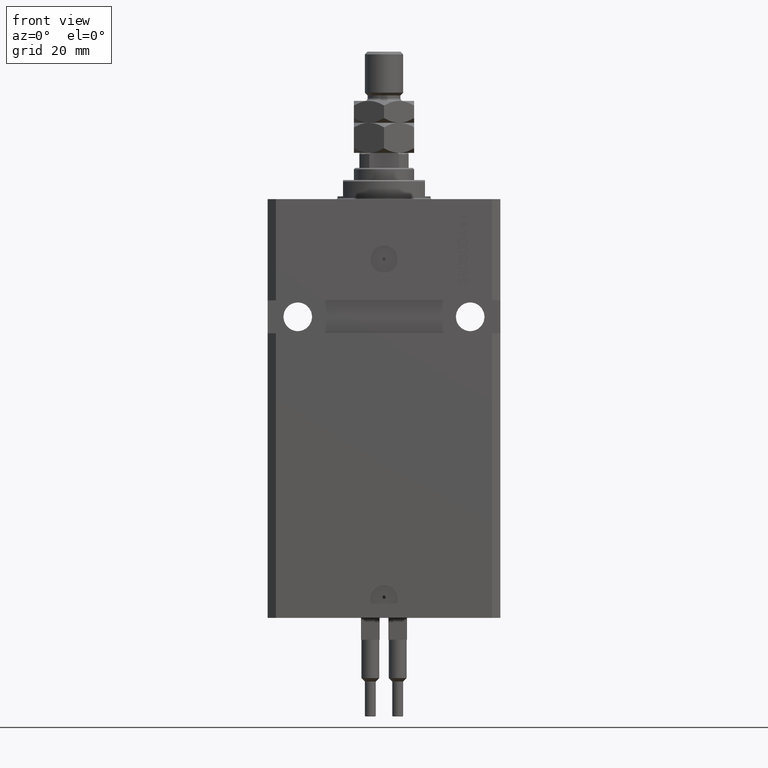
[diagram: clean part render]
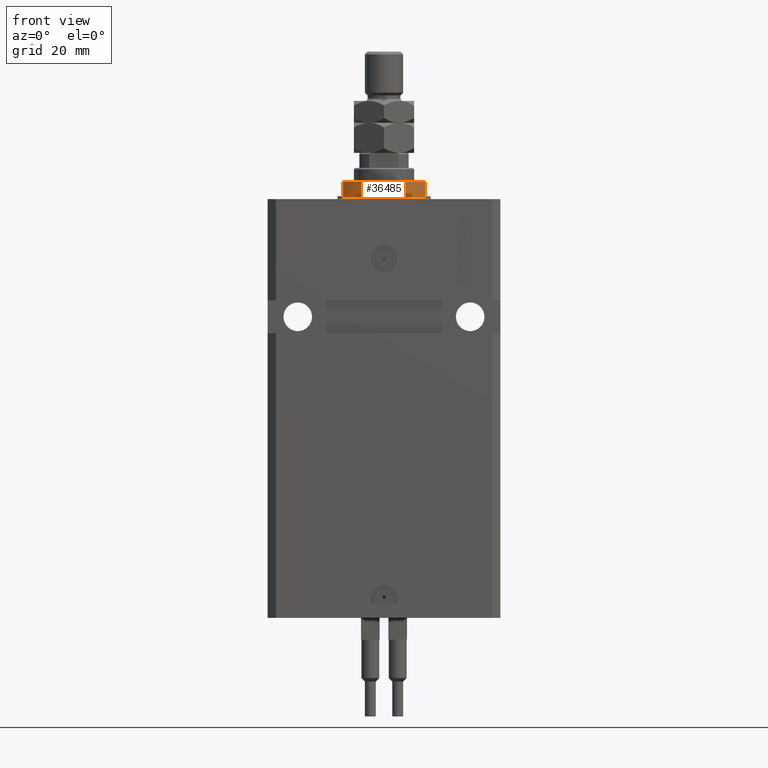
[diagram: same view with one face highlighted and labeled with its STEP entity id]
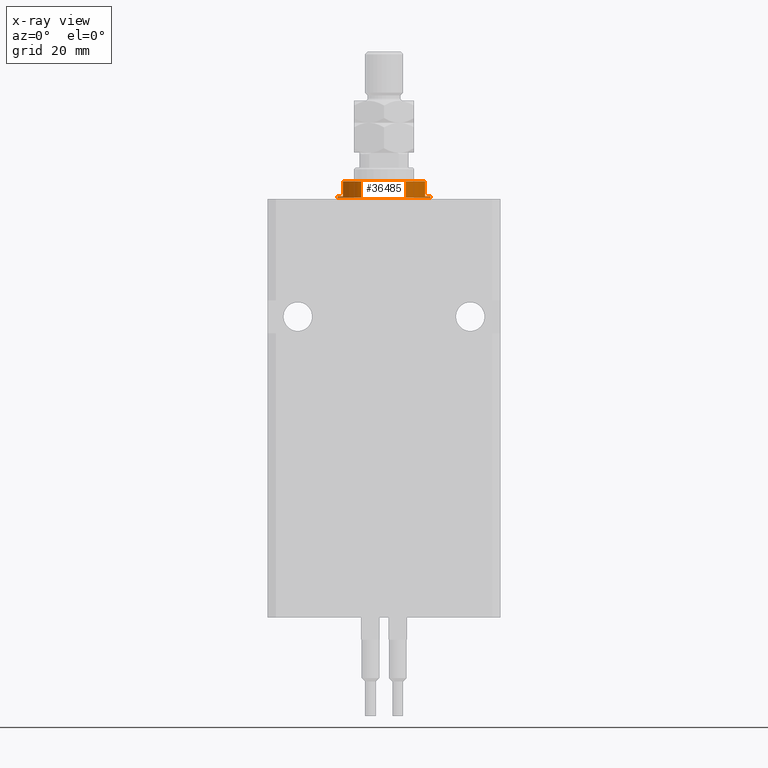
[diagram: x-ray of the same camera — body ghosted, the highlighted face saturated]
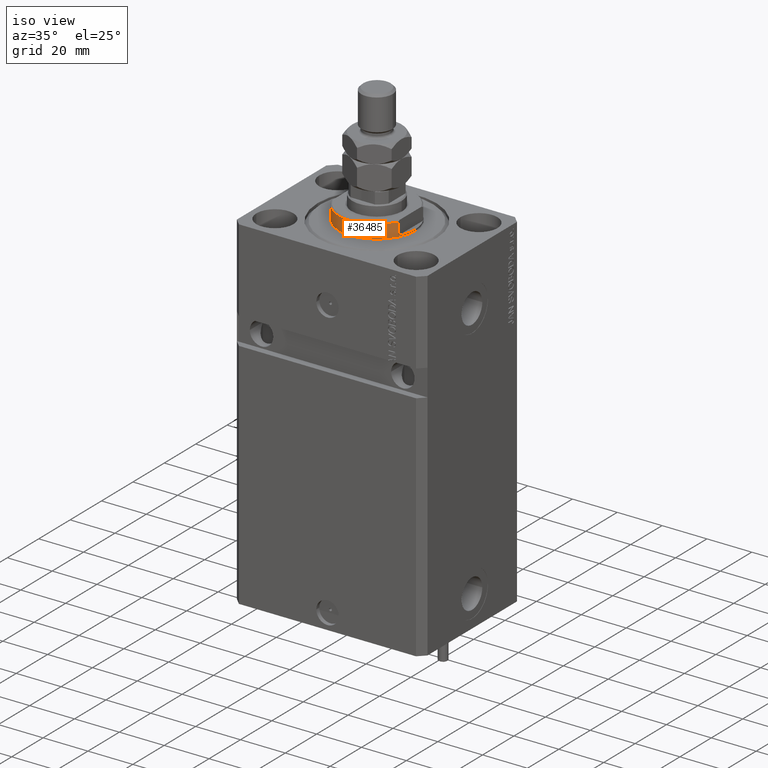
[diagram: same view with one face highlighted and labeled with its STEP entity id]
A machine part, front view. The second image highlights one B-rep face of the part: STEP entity #36485.
The next image is the same camera in x-ray: the body ghosted, the highlighted face saturated — about 0% of this face is hidden behind the body in this view.
A second angle (iso view) of the same face is appended — the face is thin or edge-on in the first view.
In plain terms, the highlighted cylindrical surface (partial cylindrical patch) has radius 17 mm, axis along (0, 0, -1).
Its self-contained STEP definition (entity closure, byte-faithful):
#93 = DIRECTION ( 'NONE',  ( -0.000000000000000000, -0.000000000000000000, 1.000000000000000000 ) ) ;
#123 = VERTEX_POINT ( 'NONE', #44448 ) ;
#2164 = LINE ( 'NONE', #49150, #21766 ) ;
#2513 = CIRCLE ( 'NONE', #44928, 17.00000000000000000 ) ;
#5825 = FACE_OUTER_BOUND ( 'NONE', #38475, .T. ) ;
#5832 = DIRECTION ( 'NONE',  ( -1.000000000000000000, 0.000000000000000000, 0.000000000000000000 ) ) ;
#8027 = ORIENTED_EDGE ( 'NONE', *, *, #12609, .T. ) ;
#8747 = CARTESIAN_POINT ( 'NONE',  ( 14.99999999999999645, -8.000000000000003553, -1.000000000000000000 ) ) ;
#9197 = CARTESIAN_POINT ( 'NONE',  ( 0.000000000000000000, 0.000000000000000000, -1.000000000000000000 ) ) ;
#9583 = VECTOR ( 'NONE', #16951, 1000.000000000000000 ) ;
#9759 = VERTEX_POINT ( 'NONE', #37203 ) ;
#9832 = VERTEX_POINT ( 'NONE', #8747 ) ;
#10401 = VERTEX_POINT ( 'NONE', #14775 ) ;
#12609 = EDGE_CURVE ( 'NONE', #36352, #123, #20786, .T. ) ;
#12881 = CARTESIAN_POINT ( 'NONE',  ( 0.000000000000000000, 0.000000000000000000, -6.500000000000000000 ) ) ;
#13054 = VERTEX_POINT ( 'NONE', #39513 ) ;
#13129 = CARTESIAN_POINT ( 'NONE',  ( -15.00000000000000000, -8.000000000000001776, -7.000000000000000000 ) ) ;
#14572 = CARTESIAN_POINT ( 'NONE',  ( -17.00000000000000000, 2.081899558550500280E-15, -7.000000000000000000 ) ) ;
#14775 = CARTESIAN_POINT ( 'NONE',  ( 17.00000000000000000, 0.000000000000000000, -1.000000000000000000 ) ) ;
#16951 = DIRECTION ( 'NONE',  ( 0.000000000000000000, 0.000000000000000000, -1.000000000000000000 ) ) ;
#17491 = DIRECTION ( 'NONE',  ( 0.000000000000000000, 0.000000000000000000, -1.000000000000000000 ) ) ;
#18057 = EDGE_CURVE ( 'NONE', #10401, #9832, #46679, .T. ) ;
#18831 = VECTOR ( 'NONE', #22480, 1000.000000000000000 ) ;
#19658 = LINE ( 'NONE', #14572, #18831 ) ;
#19944 = EDGE_CURVE ( 'NONE', #13054, #9759, #19658, .T. ) ;
#20786 = LINE ( 'NONE', #13129, #9583 ) ;
#21212 = DIRECTION ( 'NONE',  ( 0.000000000000000000, 0.000000000000000000, -1.000000000000000000 ) ) ;
#21423 = CYLINDRICAL_SURFACE ( 'NONE', #24255, 17.00000000000000000 ) ;
#21597 = ORIENTED_EDGE ( 'NONE', *, *, #19944, .F. ) ;
#21766 = VECTOR ( 'NONE', #17491, 1000.000000000000000 ) ;
#22480 = DIRECTION ( 'NONE',  ( -0.000000000000000000, -0.000000000000000000, 1.000000000000000000 ) ) ;
#22658 = ORIENTED_EDGE ( 'NONE', *, *, #49294, .T. ) ;
#23053 = ORIENTED_EDGE ( 'NONE', *, *, #27279, .T. ) ;
#23564 = ORIENTED_EDGE ( 'NONE', *, *, #18057, .F. ) ;
#24255 = AXIS2_PLACEMENT_3D ( 'NONE', #48258, #25755, #36996 ) ;
#25755 = DIRECTION ( 'NONE',  ( -0.000000000000000000, -0.000000000000000000, 1.000000000000000000 ) ) ;
#26519 = CARTESIAN_POINT ( 'NONE',  ( 17.00000000000000000, 0.000000000000000000, -0.4999999999999995559 ) ) ;
#26563 = ORIENTED_EDGE ( 'NONE', *, *, #48665, .T. ) ;
#27279 = EDGE_CURVE ( 'NONE', #123, #46348, #42643, .T. ) ;
#28531 = AXIS2_PLACEMENT_3D ( 'NONE', #9197, #21212, #45201 ) ;
#29495 = VECTOR ( 'NONE', #93, 1000.000000000000000 ) ;
#29527 = CIRCLE ( 'NONE', #48297, 17.00000000000000000 ) ;
#30993 = LINE ( 'NONE', #38921, #29495 ) ;
#32956 = DIRECTION ( 'NONE',  ( -0.000000000000000000, -0.000000000000000000, -1.000000000000000000 ) ) ;
#36245 = CARTESIAN_POINT ( 'NONE',  ( -14.99999999999999645, -8.000000000000003553, -1.000000000000000000 ) ) ;
#36352 = VERTEX_POINT ( 'NONE', #36245 ) ;
#36485 = ADVANCED_FACE ( 'NONE', ( #5825 ), #21423, .T. ) ;
#36586 = ORIENTED_EDGE ( 'NONE', *, *, #46369, .F. ) ;
#36613 = VERTEX_POINT ( 'NONE', #26519 ) ;
#36996 = DIRECTION ( 'NONE',  ( 1.000000000000000000, 0.000000000000000000, 0.000000000000000000 ) ) ;
#37203 = CARTESIAN_POINT ( 'NONE',  ( -17.00000000000000000, 2.081899558550500280E-15, -0.4999999999999995559 ) ) ;
#38475 = EDGE_LOOP ( 'NONE', ( #21597, #36586, #8027, #23053, #38663, #23564, #26563, #22658 ) ) ;
#38663 = ORIENTED_EDGE ( 'NONE', *, *, #39609, .F. ) ;
#38921 = CARTESIAN_POINT ( 'NONE',  ( 17.00000000000000000, 0.000000000000000000, -7.000000000000000000 ) ) ;
#39513 = CARTESIAN_POINT ( 'NONE',  ( -17.00000000000000000, 2.081899558550500280E-15, -1.000000000000000000 ) ) ;
#39609 = EDGE_CURVE ( 'NONE', #9832, #46348, #2164, .T. ) ;
#39700 = DIRECTION ( 'NONE',  ( -1.000000000000000000, 0.000000000000000000, 0.000000000000000000 ) ) ;
#40195 = AXIS2_PLACEMENT_3D ( 'NONE', #12881, #47871, #39700 ) ;
#40844 = DIRECTION ( 'NONE',  ( 0.000000000000000000, 0.000000000000000000, -1.000000000000000000 ) ) ;
#41088 = CARTESIAN_POINT ( 'NONE',  ( 15.00000000000000000, -8.000000000000001776, -6.500000000000000000 ) ) ;
#42643 = CIRCLE ( 'NONE', #40195, 17.00000000000000000 ) ;
#44448 = CARTESIAN_POINT ( 'NONE',  ( -15.00000000000000000, -8.000000000000001776, -6.500000000000000888 ) ) ;
#44680 = CARTESIAN_POINT ( 'NONE',  ( 0.000000000000000000, 0.000000000000000000, -1.000000000000000000 ) ) ;
#44928 = AXIS2_PLACEMENT_3D ( 'NONE', #44680, #40844, #5832 ) ;
#45201 = DIRECTION ( 'NONE',  ( -1.000000000000000000, 0.000000000000000000, 0.000000000000000000 ) ) ;
#46348 = VERTEX_POINT ( 'NONE', #41088 ) ;
#46369 = EDGE_CURVE ( 'NONE', #36352, #13054, #2513, .T. ) ;
#46679 = CIRCLE ( 'NONE', #28531, 17.00000000000000000 ) ;
#47871 = DIRECTION ( 'NONE',  ( 0.000000000000000000, 0.000000000000000000, 1.000000000000000000 ) ) ;
#48258 = CARTESIAN_POINT ( 'NONE',  ( 0.000000000000000000, 0.000000000000000000, -7.000000000000000000 ) ) ;
#48297 = AXIS2_PLACEMENT_3D ( 'NONE', #49279, #32956, #48539 ) ;
#48539 = DIRECTION ( 'NONE',  ( 1.000000000000000000, 0.000000000000000000, 0.000000000000000000 ) ) ;
#48665 = EDGE_CURVE ( 'NONE', #10401, #36613, #30993, .T. ) ;
#49150 = CARTESIAN_POINT ( 'NONE',  ( 15.00000000000000000, -8.000000000000001776, -7.000000000000000000 ) ) ;
#49279 = CARTESIAN_POINT ( 'NONE',  ( 0.000000000000000000, 0.000000000000000000, -0.4999999999999995559 ) ) ;
#49294 = EDGE_CURVE ( 'NONE', #36613, #9759, #29527, .T. ) ;